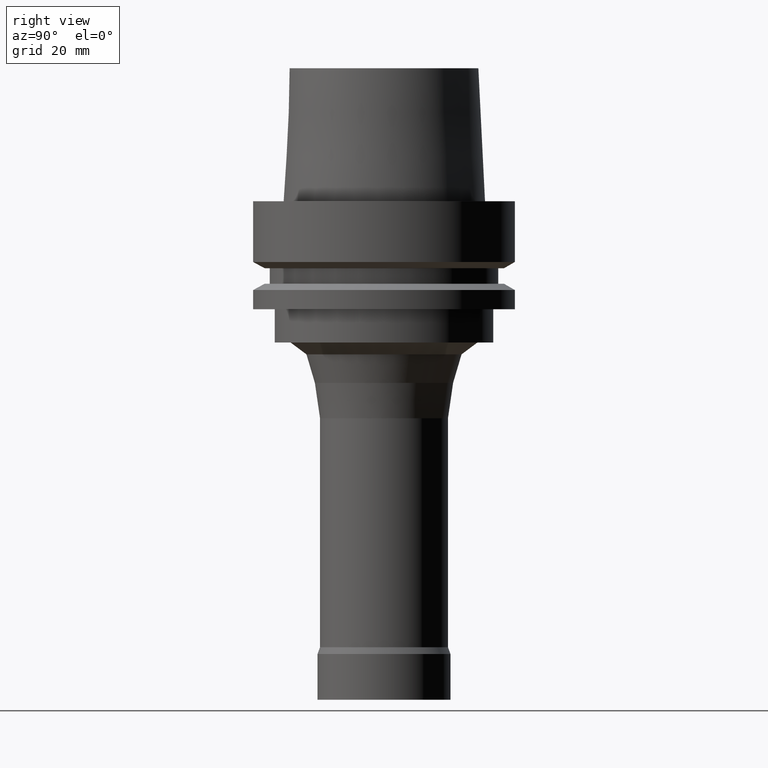
[diagram: clean part render]
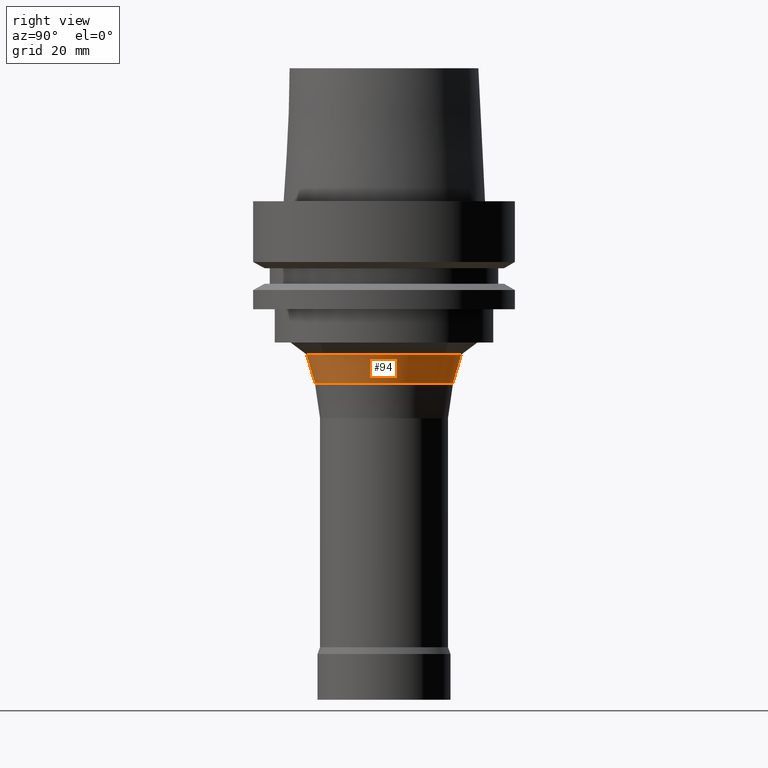
[diagram: same view with one face highlighted and labeled with its STEP entity id]
A machine part, right view. The second image highlights one B-rep face of the part: STEP entity #94.
In plain terms, the highlighted conical surface has half-angle 16.479 deg.
Its self-contained STEP definition (entity closure, byte-faithful):
#94=ADVANCED_FACE('',(#151,#152),#153,.T.);
#151=FACE_BOUND('',#209,.T.);
#152=FACE_BOUND('',#210,.T.);
#153=CONICAL_SURFACE('',#211,17.6483322232422,0.287620292656666);
#209=EDGE_LOOP('',(#305));
#210=EDGE_LOOP('',(#306));
#211=AXIS2_PLACEMENT_3D('',#307,#308,#309);
#305=ORIENTED_EDGE('',*,*,#314,.F.);
#306=ORIENTED_EDGE('',*,*,#328,.T.);
#307=CARTESIAN_POINT('',(2.46764727512779E-015,4.93529455025558E-015,-40.2997382893723));
#308=DIRECTION('',(-6.12323399573677E-017,-1.22464679914735E-016,1.0));
#309=DIRECTION('',(-1.23259516440783E-032,1.0,1.22464679914735E-016));
#314=EDGE_CURVE('',#337,#337,#338,.T.);
#328=EDGE_CURVE('',#365,#365,#366,.T.);
#337=VERTEX_POINT('',#375);
#338=CIRCLE('',#376,16.6323506781214);
#365=VERTEX_POINT('',#403);
#366=CIRCLE('',#404,18.6643137683629);
#375=CARTESIAN_POINT('',(2.67794507939739E-015,16.6323506781214,-43.7341620663505));
#376=AXIS2_PLACEMENT_3D('',#417,#418,#419);
#403=CARTESIAN_POINT('',(2.25734947085819E-015,18.6643137683629,-36.865314512394));
#404=AXIS2_PLACEMENT_3D('',#459,#460,#461);
#417=CARTESIAN_POINT('',(2.67794507939739E-015,5.35589015879477E-015,-43.7341620663505));
#418=DIRECTION('',(6.12323399573677E-017,1.22464679914735E-016,-1.0));
#419=DIRECTION('',(-1.23259516440783E-032,1.0,1.22464679914735E-016));
#459=CARTESIAN_POINT('',(2.25734947085819E-015,4.51469894171638E-015,-36.865314512394));
#460=DIRECTION('',(6.12323399573677E-017,1.22464679914735E-016,-1.0));
#461=DIRECTION('',(-1.23259516440783E-032,1.0,1.22464679914735E-016));